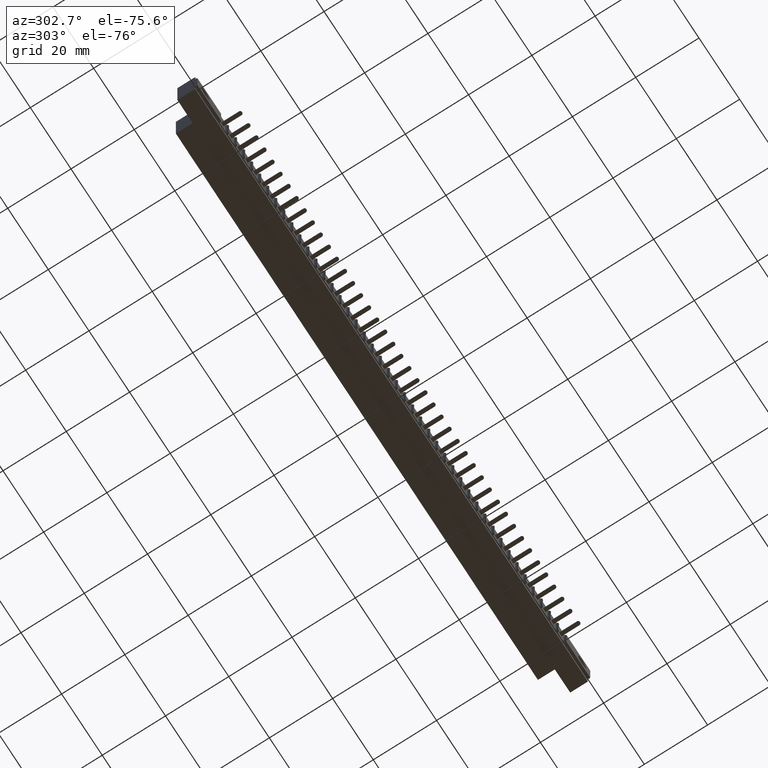
[diagram: clean part render]
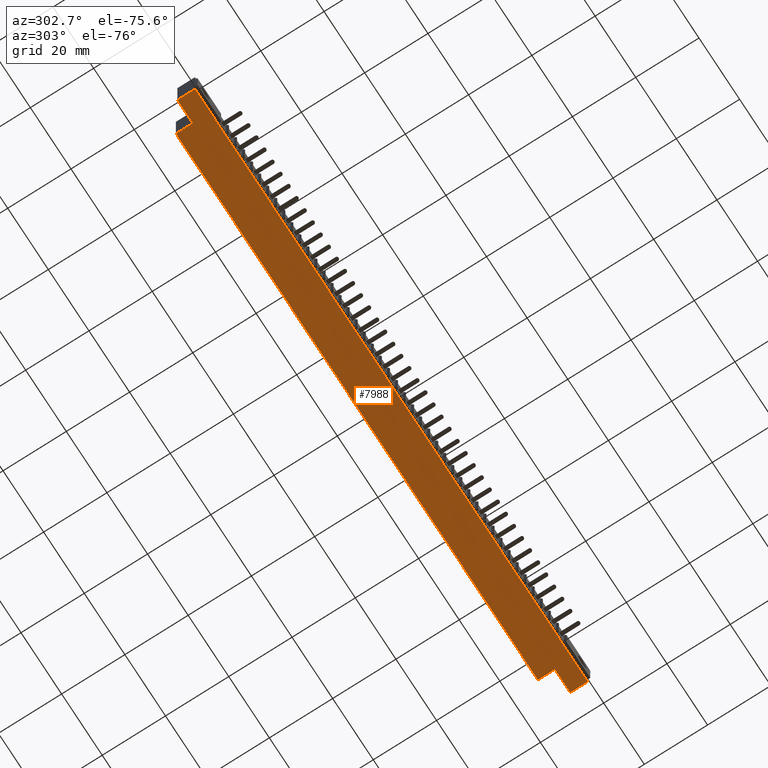
[diagram: same view with one face highlighted and labeled with its STEP entity id]
A machine part, auxiliary view. The second image highlights one B-rep face of the part: STEP entity #7988.
In plain terms, the highlighted planar face has unit normal (0, 0, 1).
Its self-contained STEP definition (entity closure, byte-faithful):
#345 = EDGE_CURVE ( 'NONE', #6972, #5625, #25612, .T. ) ;
#472 = CARTESIAN_POINT ( 'NONE',  ( 0.0000000000000000000, 0.03099999999999999978, -0.5000000000000000000 ) ) ;
#767 = CARTESIAN_POINT ( 'NONE',  ( 7.316000000000000725, 0.2500000000000000555, -0.4999999999999986122 ) ) ;
#1005 = LINE ( 'NONE', #22469, #29489 ) ;
#1158 = ORIENTED_EDGE ( 'NONE', *, *, #22172, .F. ) ;
#1351 = VECTOR ( 'NONE', #14787, 39.37007874015748143 ) ;
#1508 = DIRECTION ( 'NONE',  ( -1.000000000000000000, -0.0000000000000000000, -0.0000000000000000000 ) ) ;
#1657 = ORIENTED_EDGE ( 'NONE', *, *, #32746, .F. ) ;
#3092 = ORIENTED_EDGE ( 'NONE', *, *, #9761, .F. ) ;
#3554 = VECTOR ( 'NONE', #1508, 39.37007874015748143 ) ;
#3597 = DIRECTION ( 'NONE',  ( -0.0000000000000000000, 1.000000000000000000, -0.0000000000000000000 ) ) ;
#3642 = CARTESIAN_POINT ( 'NONE',  ( 0.2979999999999999316, 0.4600000000000000200, -0.5000000000000000000 ) ) ;
#4738 = LINE ( 'NONE', #5114, #19005 ) ;
#5114 = CARTESIAN_POINT ( 'NONE',  ( 0.0000000000000000000, 0.4600000000000000200, -0.5000000000000000000 ) ) ;
#5476 = CARTESIAN_POINT ( 'NONE',  ( 7.613999999999999879, 0.4600000000000000200, -0.5000000000000000000 ) ) ;
#5625 = VERTEX_POINT ( 'NONE', #472 ) ;
#6236 = CARTESIAN_POINT ( 'NONE',  ( 7.316000000000000725, 0.2500000000000000555, -0.4999999999999986122 ) ) ;
#6658 = LINE ( 'NONE', #6236, #8620 ) ;
#6972 = VERTEX_POINT ( 'NONE', #22541 ) ;
#7222 = VERTEX_POINT ( 'NONE', #33728 ) ;
#7589 = CARTESIAN_POINT ( 'NONE',  ( 7.613999999999999879, 0.03099999999999999978, -0.5000000000000000000 ) ) ;
#7988 = ADVANCED_FACE ( 'NONE', ( #33720 ), #23921, .F. ) ;
#8081 = CARTESIAN_POINT ( 'NONE',  ( 0.0000000000000000000, 0.2500000000000000555, -0.5000000000000000000 ) ) ;
#8268 = DIRECTION ( 'NONE',  ( -1.000000000000000000, -0.0000000000000000000, -0.0000000000000000000 ) ) ;
#8420 = VERTEX_POINT ( 'NONE', #14844 ) ;
#8587 = DIRECTION ( 'NONE',  ( -1.000000000000000000, -0.0000000000000000000, -0.0000000000000000000 ) ) ;
#8620 = VECTOR ( 'NONE', #3597, 39.37007874015748143 ) ;
#9761 = EDGE_CURVE ( 'NONE', #7222, #5625, #28187, .T. ) ;
#10943 = ORIENTED_EDGE ( 'NONE', *, *, #23648, .T. ) ;
#11555 = DIRECTION ( 'NONE',  ( -0.0000000000000000000, -1.000000000000000000, -0.0000000000000000000 ) ) ;
#14787 = DIRECTION ( 'NONE',  ( -1.000000000000000000, 0.0000000000000000000, 4.583637573262188445E-15 ) ) ;
#14844 = CARTESIAN_POINT ( 'NONE',  ( 7.316000000000000725, 0.4600000000000000200, -0.4999999999999986122 ) ) ;
#16255 = VERTEX_POINT ( 'NONE', #767 ) ;
#16306 = LINE ( 'NONE', #5476, #25211 ) ;
#16695 = DIRECTION ( 'NONE',  ( -0.0000000000000000000, 1.000000000000000000, -0.0000000000000000000 ) ) ;
#18189 = DIRECTION ( 'NONE',  ( 1.000000000000000000, 0.0000000000000000000, -0.0000000000000000000 ) ) ;
#18361 = CARTESIAN_POINT ( 'NONE',  ( 7.613999999999999879, 0.2500000000000000555, -0.5000000000000000000 ) ) ;
#18798 = VERTEX_POINT ( 'NONE', #18361 ) ;
#19005 = VECTOR ( 'NONE', #8587, 39.37007874015748143 ) ;
#20832 = EDGE_CURVE ( 'NONE', #18798, #16255, #24225, .T. ) ;
#21931 = VERTEX_POINT ( 'NONE', #3642 ) ;
#22172 = EDGE_CURVE ( 'NONE', #31557, #7222, #29947, .T. ) ;
#22469 = CARTESIAN_POINT ( 'NONE',  ( 0.2979999999999999316, 0.2500000000000000555, -0.5000000000000000000 ) ) ;
#22541 = CARTESIAN_POINT ( 'NONE',  ( 7.613999999999999879, 0.03099999999999999978, -0.5000000000000000000 ) ) ;
#23312 = CARTESIAN_POINT ( 'NONE',  ( 0.2979999999999999871, 0.2500000000000000555, -0.5000000000000000000 ) ) ;
#23648 = EDGE_CURVE ( 'NONE', #31557, #21931, #1005, .T. ) ;
#23921 = PLANE ( 'NONE',  #28887 ) ;
#24225 = LINE ( 'NONE', #39119, #1351 ) ;
#25211 = VECTOR ( 'NONE', #11555, 39.37007874015748143 ) ;
#25612 = LINE ( 'NONE', #7589, #3554 ) ;
#25714 = VECTOR ( 'NONE', #34297, 39.37007874015748143 ) ;
#26176 = EDGE_CURVE ( 'NONE', #18798, #6972, #16306, .T. ) ;
#27401 = CARTESIAN_POINT ( 'NONE',  ( 0.0000000000000000000, 0.4600000000000000200, -0.5000000000000000000 ) ) ;
#28187 = LINE ( 'NONE', #37362, #25714 ) ;
#28887 = AXIS2_PLACEMENT_3D ( 'NONE', #27401, #36369, #18189 ) ;
#29489 = VECTOR ( 'NONE', #16695, 39.37007874015748143 ) ;
#29947 = LINE ( 'NONE', #8081, #30035 ) ;
#30035 = VECTOR ( 'NONE', #8268, 39.37007874015748143 ) ;
#30332 = EDGE_LOOP ( 'NONE', ( #1657, #35727, #40009, #31553, #36795, #3092, #1158, #10943 ) ) ;
#31553 = ORIENTED_EDGE ( 'NONE', *, *, #26176, .T. ) ;
#31557 = VERTEX_POINT ( 'NONE', #23312 ) ;
#32746 = EDGE_CURVE ( 'NONE', #8420, #21931, #4738, .T. ) ;
#33720 = FACE_OUTER_BOUND ( 'NONE', #30332, .T. ) ;
#33728 = CARTESIAN_POINT ( 'NONE',  ( 0.0000000000000000000, 0.2500000000000000555, -0.5000000000000000000 ) ) ;
#34297 = DIRECTION ( 'NONE',  ( -0.0000000000000000000, -1.000000000000000000, -0.0000000000000000000 ) ) ;
#35598 = EDGE_CURVE ( 'NONE', #16255, #8420, #6658, .T. ) ;
#35727 = ORIENTED_EDGE ( 'NONE', *, *, #35598, .F. ) ;
#36369 = DIRECTION ( 'NONE',  ( 0.0000000000000000000, 0.0000000000000000000, 1.000000000000000000 ) ) ;
#36795 = ORIENTED_EDGE ( 'NONE', *, *, #345, .T. ) ;
#37362 = CARTESIAN_POINT ( 'NONE',  ( 0.0000000000000000000, 0.4600000000000000200, -0.5000000000000000000 ) ) ;
#39119 = CARTESIAN_POINT ( 'NONE',  ( 7.613999999999999879, 0.2500000000000000555, -0.5000000000000000000 ) ) ;
#40009 = ORIENTED_EDGE ( 'NONE', *, *, #20832, .F. ) ;